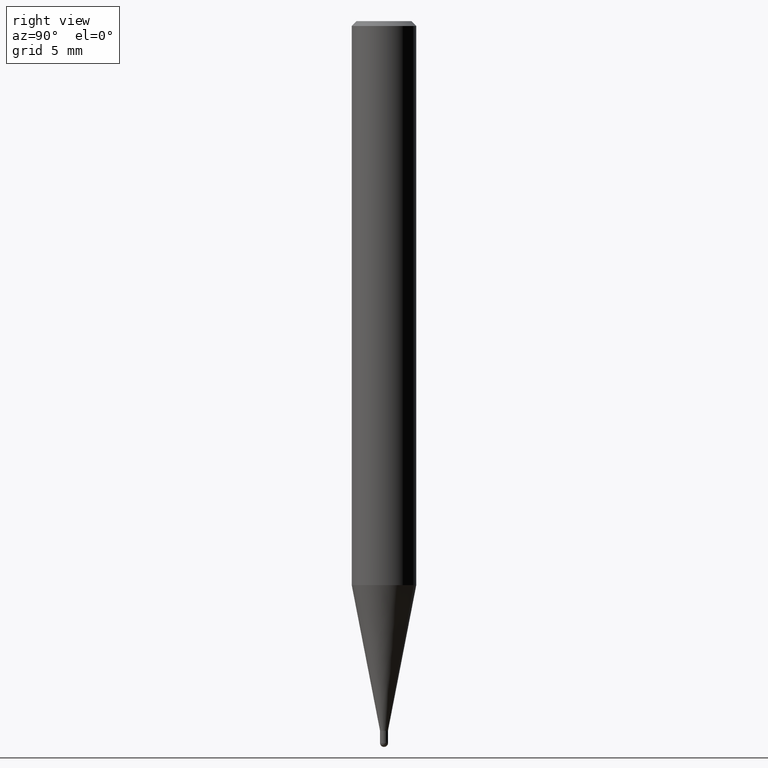
[diagram: clean part render]
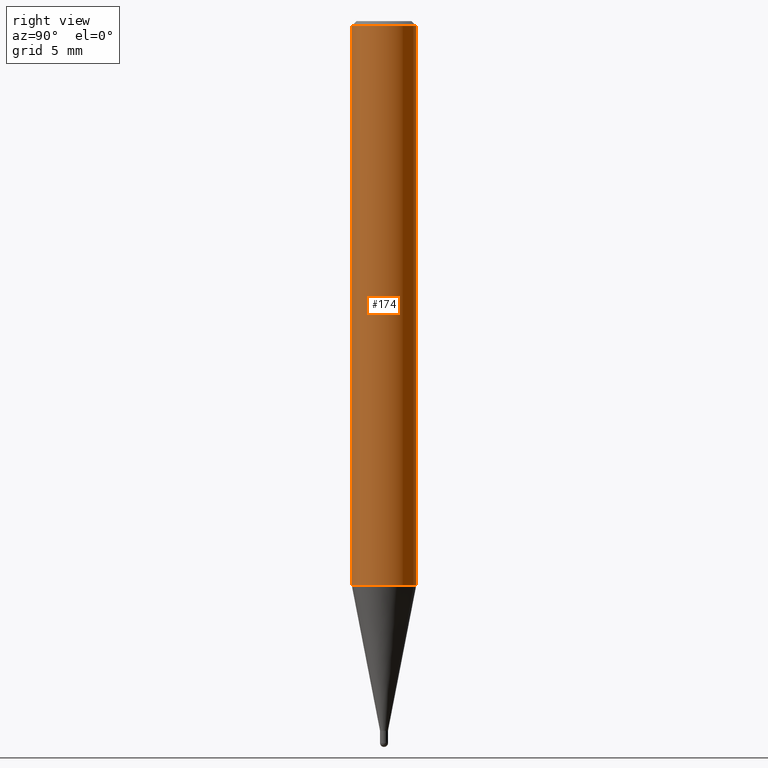
[diagram: same view with one face highlighted and labeled with its STEP entity id]
A machine part, right view. The second image highlights one B-rep face of the part: STEP entity #174.
In plain terms, the highlighted cylindrical surface (edge-blend (fillet) strip) has radius 2 mm, axis along (-0, -0, 1).
Its self-contained STEP definition (entity closure, byte-faithful):
#146=EDGE_CURVE('',#158,#214,#291,.T.);
#158=VERTEX_POINT('',#305);
#174=ADVANCED_FACE('',(#323),#324,.T.);
#188=VERTEX_POINT('',#342);
#196=EDGE_CURVE('',#188,#158,#353,.T.);
#208=VERTEX_POINT('',#366);
#210=EDGE_CURVE('',#188,#208,#368,.T.);
#212=EDGE_CURVE('',#214,#208,#370,.T.);
#214=VERTEX_POINT('',#372);
#291=CIRCLE('',#461,2.0);
#305=CARTESIAN_POINT('',(0.0,2.0,-34.971));
#323=FACE_OUTER_BOUND('',#498,.T.);
#324=CYLINDRICAL_SURFACE('',#499,2.0);
#342=CARTESIAN_POINT('',(0.0,2.0,-0.299999999999997));
#353=LINE('',#531,#532);
#366=CARTESIAN_POINT('',(2.44921270764475E-016,-2.0,-0.299999999999997));
#368=CIRCLE('',#551,2.0);
#370=LINE('',#554,#555);
#372=CARTESIAN_POINT('',(2.44921270764475E-016,-2.0,-34.971));
#461=AXIS2_PLACEMENT_3D('',#630,#631,#632);
#498=EDGE_LOOP('',(#665,#666,#667,#668));
#499=AXIS2_PLACEMENT_3D('',#669,#670,#671);
#531=CARTESIAN_POINT('',(-2.44921270764475E-016,2.0,-17.6355));
#532=VECTOR('',#725,1.0);
#551=AXIS2_PLACEMENT_3D('',#736,#737,#738);
#554=CARTESIAN_POINT('',(2.44921270764475E-016,-2.0,-17.6355));
#555=VECTOR('',#739,1.0);
#630=CARTESIAN_POINT('',(0.0,0.0,-34.971));
#631=DIRECTION('',(0.0,0.0,-1.0));
#632=DIRECTION('',(0.0,1.0,0.0));
#665=ORIENTED_EDGE('',*,*,#196,.F.);
#666=ORIENTED_EDGE('',*,*,#210,.T.);
#667=ORIENTED_EDGE('',*,*,#212,.F.);
#668=ORIENTED_EDGE('',*,*,#146,.F.);
#669=CARTESIAN_POINT('',(0.0,0.0,-17.6355));
#670=DIRECTION('',(-0.0,-0.0,1.0));
#671=DIRECTION('',(0.0,1.0,0.0));
#725=DIRECTION('',(0.0,0.0,-1.0));
#736=CARTESIAN_POINT('',(0.0,0.0,-0.299999999999997));
#737=DIRECTION('',(0.0,0.0,-1.0));
#738=DIRECTION('',(0.0,1.0,0.0));
#739=DIRECTION('',(-0.0,-0.0,1.0));